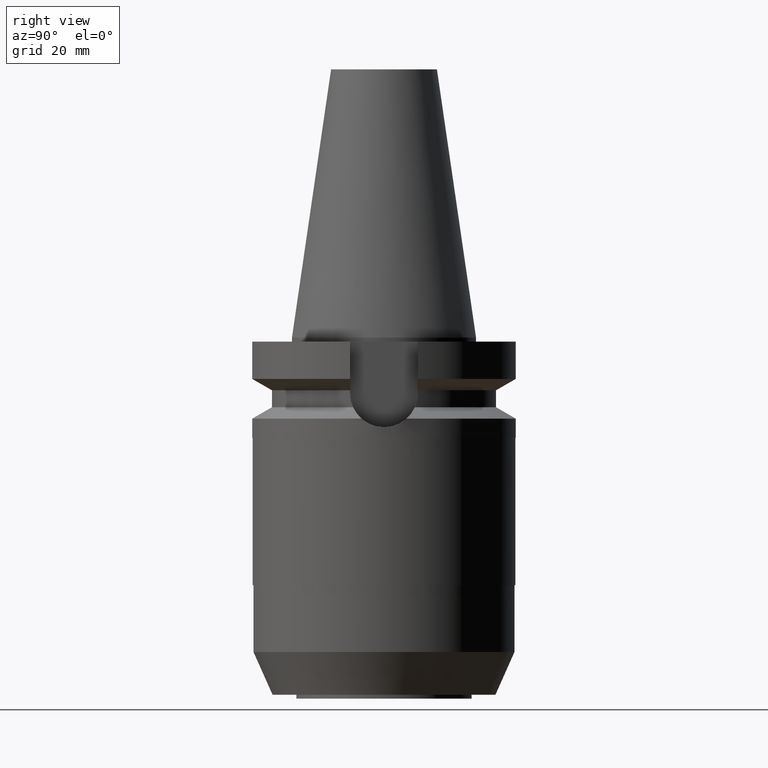
[diagram: clean part render]
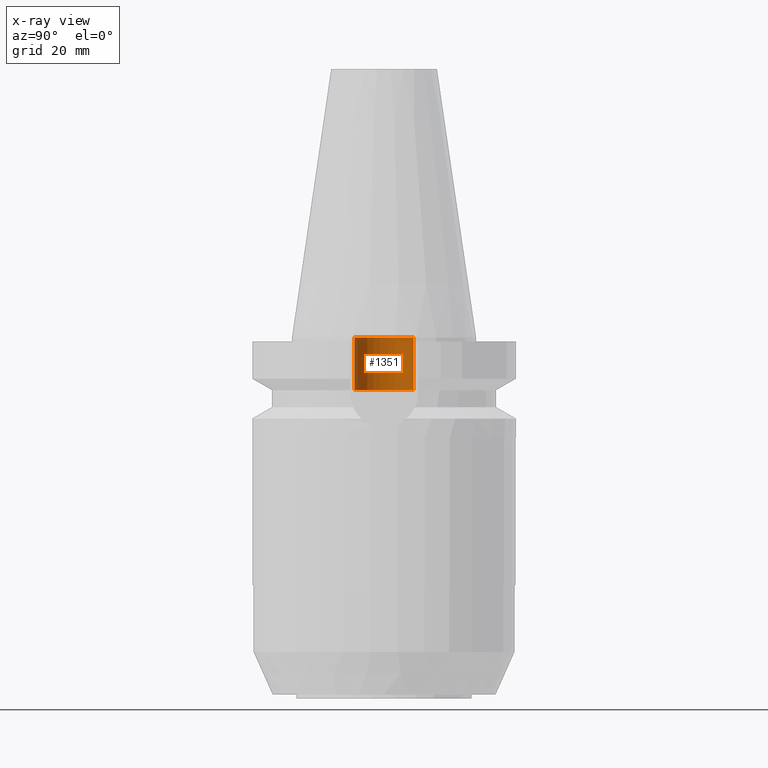
[diagram: x-ray — body ghosted, one internal face saturated and labeled with its STEP entity id]
A machine part, right view, then the same camera in x-ray: the body is ghosted and one INTERNAL B-rep face — a face not visible from any outside direction — is saturated and labeled: STEP entity #1351.
In plain terms, the highlighted cylindrical surface (edge-blend (fillet) strip) has radius 11.25 mm, axis along (0, 0, -1).
Its self-contained STEP definition (entity closure, byte-faithful):
#132=DIRECTION('',(0.E0,0.E0,1.E0));
#133=VECTOR('',#132,2.E1);
#134=CARTESIAN_POINT('',(0.E0,-1.125E1,-2.E1));
#135=LINE('',#134,#133);
#139=CARTESIAN_POINT('',(0.E0,2.617560068498E-14,1.989519660128E-13));
#140=DIRECTION('',(0.E0,0.E0,-1.E0));
#141=DIRECTION('',(0.E0,-1.E0,0.E0));
#142=AXIS2_PLACEMENT_3D('',#139,#140,#141);
#147=DIRECTION('',(0.E0,0.E0,1.E0));
#148=VECTOR('',#147,2.E1);
#149=CARTESIAN_POINT('',(0.E0,1.125E1,-2.E1));
#150=LINE('',#149,#148);
#170=CARTESIAN_POINT('',(0.E0,2.617560068498E-14,-2.E1));
#171=DIRECTION('',(0.E0,0.E0,-1.E0));
#172=DIRECTION('',(0.E0,-1.E0,0.E0));
#173=AXIS2_PLACEMENT_3D('',#170,#171,#172);
#1074=CARTESIAN_POINT('',(0.E0,1.125E1,1.989519660128E-13));
#1075=VERTEX_POINT('',#1074);
#1076=CARTESIAN_POINT('',(0.E0,-1.125E1,1.989519660128E-13));
#1077=VERTEX_POINT('',#1076);
#1078=CARTESIAN_POINT('',(0.E0,1.125E1,-2.E1));
#1079=VERTEX_POINT('',#1078);
#1080=CARTESIAN_POINT('',(0.E0,-1.125E1,-2.E1));
#1081=VERTEX_POINT('',#1080);
#1337=CARTESIAN_POINT('',(0.E0,2.617560068498E-14,1.1374E2));
#1338=DIRECTION('',(0.E0,0.E0,-1.E0));
#1339=DIRECTION('',(0.E0,-1.E0,0.E0));
#1340=AXIS2_PLACEMENT_3D('',#1337,#1338,#1339);
#1341=CYLINDRICAL_SURFACE('',#1340,1.125E1);
#1343=ORIENTED_EDGE('',*,*,#1342,.F.);
#1345=ORIENTED_EDGE('',*,*,#1344,.F.);
#1347=ORIENTED_EDGE('',*,*,#1346,.T.);
#1348=ORIENTED_EDGE('',*,*,#1330,.T.);
#1349=EDGE_LOOP('',(#1343,#1345,#1347,#1348));
#1350=FACE_OUTER_BOUND('',#1349,.F.);
#143=CIRCLE('',#142,1.125E1);
#174=CIRCLE('',#173,1.125E1);
#1330=EDGE_CURVE('',#1077,#1075,#143,.T.);
#1342=EDGE_CURVE('',#1079,#1075,#150,.T.);
#1344=EDGE_CURVE('',#1081,#1079,#174,.T.);
#1346=EDGE_CURVE('',#1081,#1077,#135,.T.);
#1351=ADVANCED_FACE('',(#1350),#1341,.F.);